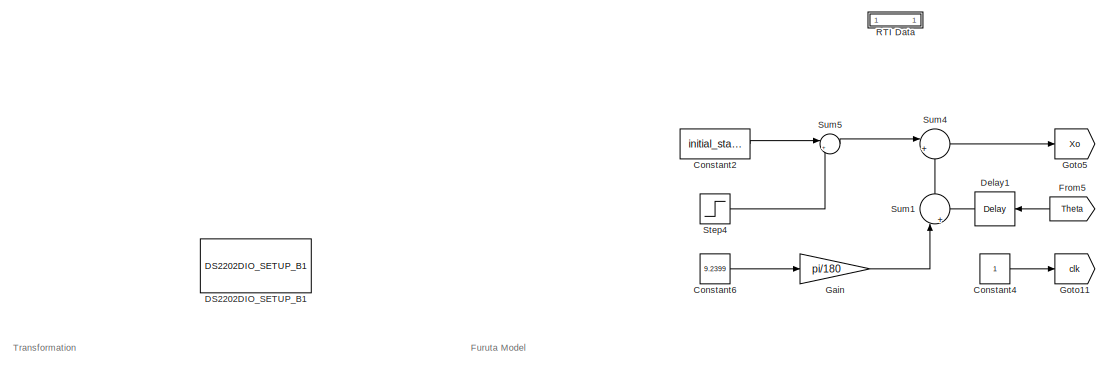
[diagram: root canvas - part 1/3, top left region]
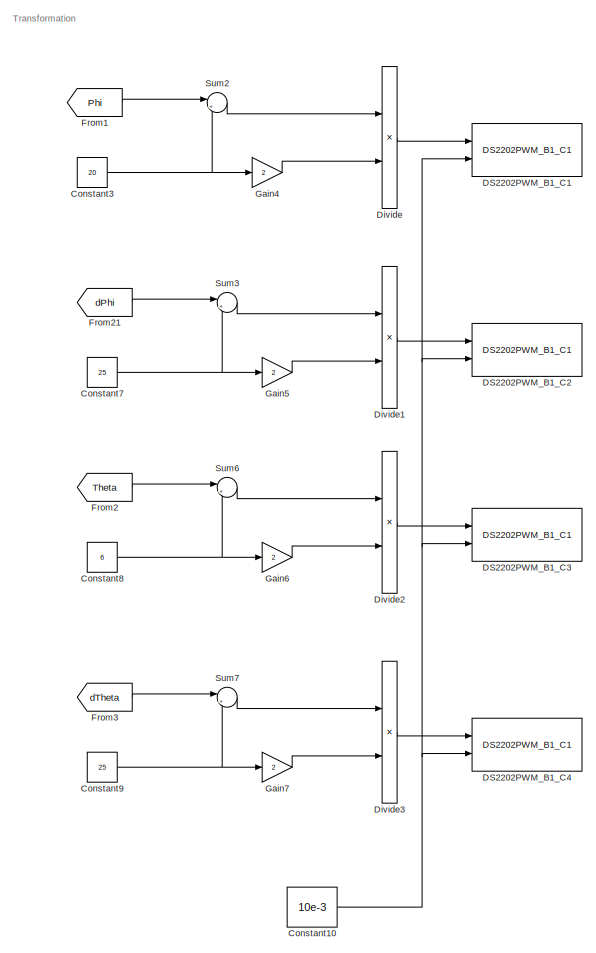
[diagram: root canvas - part 2/3, right side, full height]
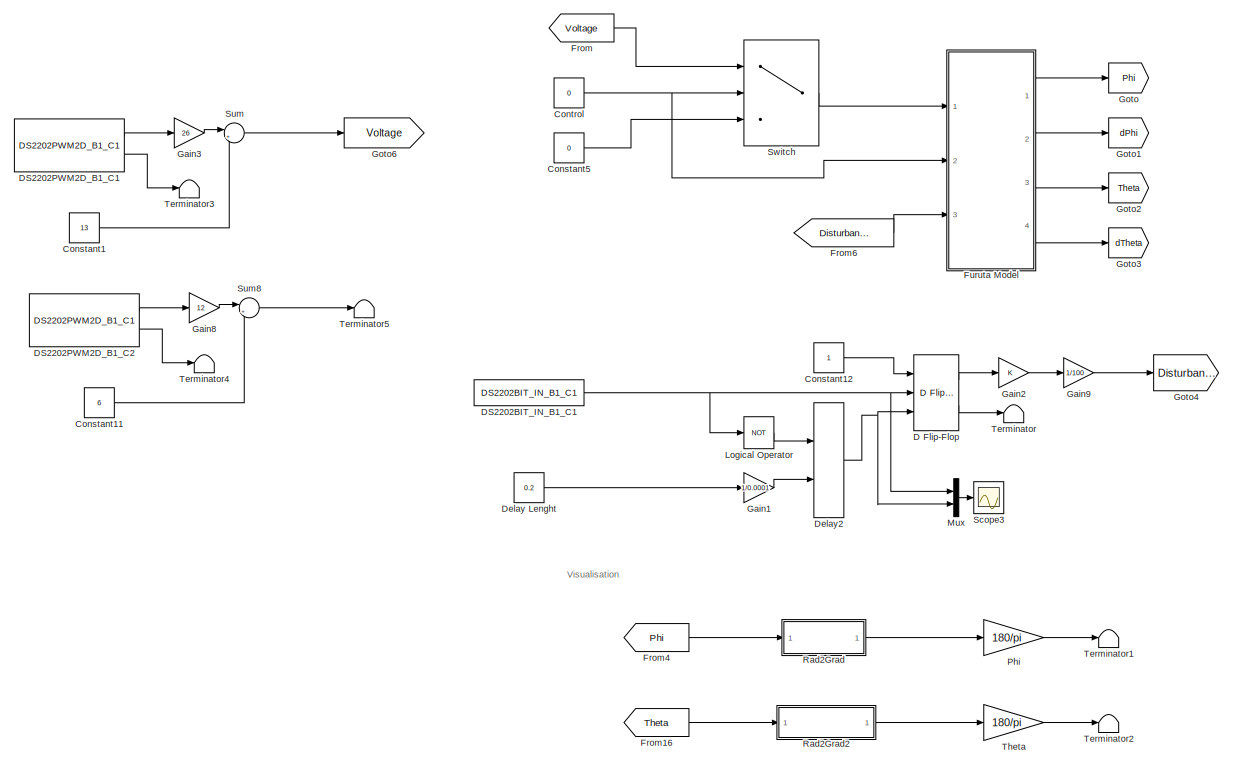
[diagram: root canvas - part 3/3, central region]
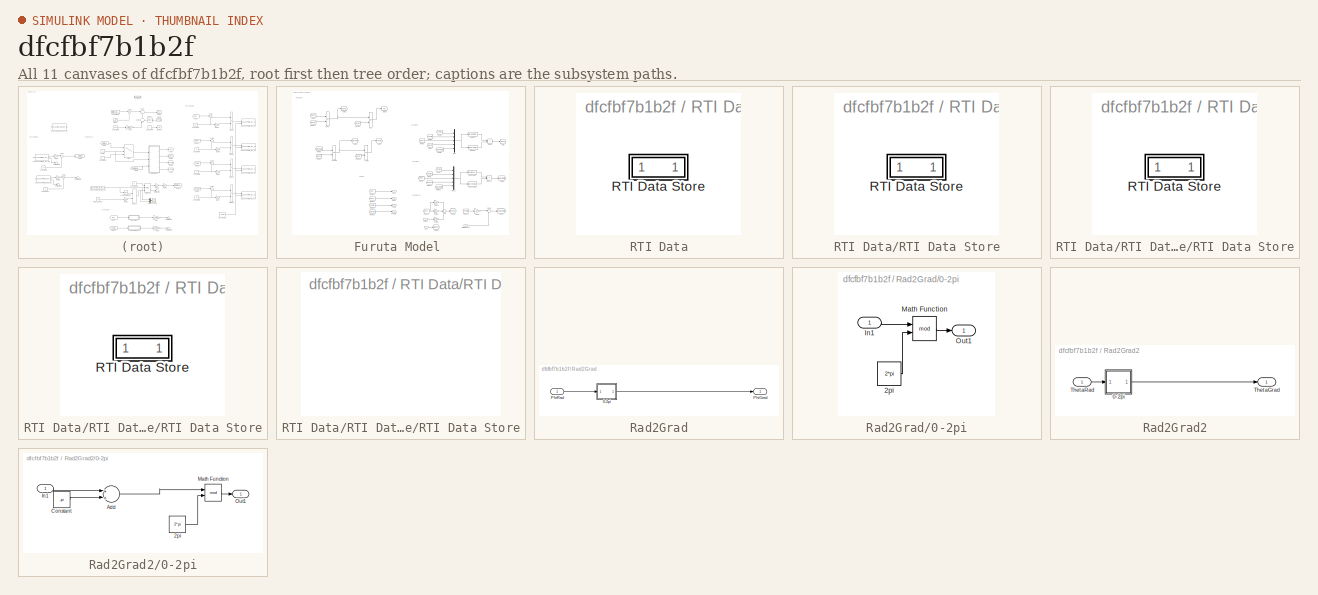
[diagram: thumbnail index - all 11 canvases of the model, root first then tree order]
MODEL slx_dfcfbf7b1b2f
KIND model
CONFIG AbsTol = auto
CONFIG FixedStep = 0.0001
CONFIG MaxStep = auto
CONFIG MinStep = auto
CONFIG PostLoadFcn = , if any(exist('dsrtsu_mdlpostloadfcn', 'file') == [2, 3, 6]), try dsrtsu_mdlpostloadfcn('Execute', bdroot); catch fprintf('Error in PostLoadFcn (dsrtsu_mdlpostloadfcn) for model "%s":\n %s\n', bdroot, lasterr); end, end, \n
CONFIG RelTol = 1e-3
CONFIG SampleTimeConstraint = Unconstrained
CONFIG Solver = ode3
CONFIG SolverMode = SingleTasking
CONFIG SolverName = ode3
CONFIG StartTime = 0.0
CONFIG StopTime = Inf
BLOCK [Constant] Constant1
  Value = 13
BLOCK [Constant] Constant10
  Value = 10e-3
BLOCK [Constant] Constant11
  Value = 6
BLOCK [Constant] Constant12
  OutDataTypeStr = boolean
BLOCK [Constant] Constant2
  Commented = on
  Value = initial_state
BLOCK [Constant] Constant3
  Value = 20
BLOCK [Constant] Constant4
  Commented = on
BLOCK [Constant] Constant5
  Value = 0
BLOCK [Constant] Constant6
  Commented = on
  Value = 9.2399
BLOCK [Constant] Constant7
  Value = 25
BLOCK [Constant] Constant8
  Value = 6
BLOCK [Constant] Constant9
  Value = 25
BLOCK [Constant] Control
  Value = 0
BLOCK [Reference] D Flip-Flop  REF=simulink_extras/Flip Flops/D Flip-Flop
  Ports = [3, 2]
  SourceBlock = simulink_extras/Flip Flops/D Flip-Flop
  SourceType = DFlipFlop
BLOCK [Reference] DS2202BIT_IN_B1_C1  REF=rti2202miolib/DS2202BIT_IN_B1_C1
  DSProperties = struct('RTI',struct('Version',uint32(1),'BlockType',struct('isSLSource',uint8(1),'isSLSink',uint8(0),'isHWSource',uint8(1),'isHWSink',uint8(0),'isSetup',uint8(0),'isInline',uint8(1),'isNonInline',uint8(0),'isInterrupt',uint8(0),'isChannelwise',uint8(1)),'IOBoardType',{{'DS2202','MIO'}},'UnitType','BIT','Identifier','BITINCH','DialogType','ML','BlockSet','NONE','SlaveProcessor','NONE'))
  Ports = [0, 1]
  RTIBlockInterface = struct('OutputPortsWidth',int32(1),'OutputPortsDataType',{{'SS_BOOLEAN'}},'OutputPortsActive',1,'OutputPortsName',{{'BITCH_out'}},'BlockDisplay',{{['BIT IN\n Channelwise'],'center'}},'IconTransparency','off','InitLevel',2,'DialogFcn','gui2202bitinch','BlockName',struct('Token',{{'DS2202BIT_IN_B','_C'}},'BlockParam',{{'BoardNo','ChannelNo'}}),'MaskDescription',['Provides channelwise read access to ...<+21ch>
  RTIBlockParaDefault = struct('BoardNo',1,'ChannelNo',1,'TLCFileName','rti2202inch')
  RTIBlockParameters = struct('BoardNo',{{1,'ON',[1 16]}},'ChannelNo',{{1,'ON',[1 38]}},'TLCFileName',{{'rti2202inch','OFF',[]}})
  RTISFcnParameters = struct('BoardNo','int32','ChannelNo','int32','TLCFileName','char')
  Reserved1 = []
  Reserved2 = []
  Reserved3 = []
  Reserved4 = []
  SourceBlock = rti2202miolib/DS2202BIT_IN_B1_C1
  SourceType = RTI
BLOCK [Reference] DS2202DIO_SETUP_B1  REF=rti2202miolib/DS2202DIO_SETUP_B1
  DSProperties = struct('RTI',struct('Version',uint32(2),'BlockType',struct('isSLSource',uint8(0),'isSLSink',uint8(0),'isHWSource',uint8(0),'isHWSink',uint8(0),'isSetup',uint8(1),'isInline',uint8(1),'isNonInline',uint8(0),'isInterrupt',uint8(0),'isChannelwise',uint8(0)),'IOBoardType',{{'DS2202','MIO'}},'UnitType','SETUP','Identifier','SETUP','DialogType','ML','BlockSet','NONE','SlaveProcessor','NONE'))
  Ports = []
  RTIBlockInterface = struct('OutputPortsWidth',int32(0),'OutputPortsActive',0,'BlockDisplay',{{['Digital I/O\n SETUP'],'center'}},'IconTransparency','on','InitLevel',2,'DialogFcn','gui2202diosetup','BlockName',struct('Token',{{'DS2202DIO_SETUP_B'}},'BlockParam',{{'BoardNo'}}),'MaskDescription',['Configures the threshold level and the termination mode for all digital IO'])
  RTIBlockParaDefault = struct('BoardNo',1,'TermMode',0,'BitInThresholdLevelCh1',2.5,'BitInThresholdLevelCh2',2.5,'BitInThresholdLevelCh3',2.5,'BitInThresholdLevelCh4',2.5,'BitInThresholdLevelCh5',2.5,'BitInThresholdLevelCh6',2.5,'BitInThresholdLevelCh7',2.5,'BitInThresholdLevelCh8',2.5,'BitInThresholdLevelCh9',2.5,'BitInThresholdLevelCh10',2.5,'BitInThresholdLevelCh11',2.5,'BitInThresholdLevelCh12',2.5,'BitInThresholdLe...<+776ch>
  RTIBlockParameters = struct('BoardNo',{{1,'ON',[1 16]}},'TermMode',{{0,'OFF',[0 1]}},'BitInThresholdLevelCh1',{{'2.5','OFF',[1 23.8]}},'BitInThresholdLevelCh2',{{'2.5','OFF',[1 23.8]}},'BitInThresholdLevelCh3',{{'2.5','OFF',[1 23.8]}},'BitInThresholdLevelCh4',{{'2.5','OFF',[1 23.8]}},'BitInThresholdLevelCh5',{{'2.5','OFF',[1 23.8]}},'BitInThresholdLevelCh6',{{'2.5','OFF',[1 23.8]}},'BitInThresholdLevelCh7',{{'2.5','OF...<+1466ch>
  RTISFcnParameters = struct('BoardNo','int32','TermMode','int32','BitInThresholdLevelCh1','double','BitInThresholdLevelCh2','double','BitInThresholdLevelCh3','double','BitInThresholdLevelCh4','double','BitInThresholdLevelCh5','double','BitInThresholdLevelCh6','double','BitInThresholdLevelCh7','double','BitInThresholdLevelCh8','double','BitInThresholdLevelCh9','double','BitInThresholdLevelCh10','double','BitInThreshold...<+754ch>
  Reserved1 = []
  Reserved2 = []
  Reserved3 = []
  Reserved4 = []
  SourceBlock = rti2202miolib/DS2202DIO_SETUP_B1
  SourceType = RTI
BLOCK [Reference] DS2202PWM2D_B1_C1  REF=rti2202miolib/DS2202PWM2D_B1_C1
  DSProperties = struct('RTI',struct('Version',uint32(1),'BlockType',struct('isSLSource',uint8(1),'isSLSink',uint8(0),'isHWSource',uint8(1),'isHWSink',uint8(0),'isSetup',uint8(0),'isInline',uint8(1),'isNonInline',uint8(0),'isInterrupt',uint8(0),'isChannelwise',uint8(1)),'IOBoardType',{{'DS2202','MIO'}},'UnitType','PWM','Identifier','PWM2D','DialogType','ML','BlockSet','NONE','SlaveProcessor','NONE'))
  Ports = [0, 2]
  RTIBlockInterface = struct('OutputPortsWidth',int32([1 1]),'OutputPortsActive',[1 1],'OutputPortsName',{{['Duty Cycle'],'Period'}},'IconTransparency','on','InitLevel',2,'DialogFcn','gui2202pwm2d','BlockName',struct('Token',{{'DS2202PWM2D_B','_C'}},'BlockParam',{{'BoardNo','ChannelNo'}}),'MaskDescription',['Provides read access to the pulse width of square-wave-type signals.'])
  RTIBlockParaDefault = struct('BoardNo',1,'ChannelNo',1,'UpdateMode',1,'PeriodRange',7,'TLCFileName','rti2202pwm2d')
  RTIBlockParameters = struct('BoardNo',{{1,'ON',[1 16]}},'ChannelNo',{{1,'ON',[1 24]}},'UpdateMode',{{1,'ON',[1 2]}},'PeriodRange',{{3,'OFF',[1 16]}},'TLCFileName',{{'rti2202pwm2d','OFF',[]}})
  RTISFcnParameters = struct('BoardNo','int32','ChannelNo','int32','UpdateMode','int32','PeriodRange','int32','TLCFileName','char')
  Reserved1 = []
  Reserved2 = []
  Reserved3 = []
  Reserved4 = []
  SourceBlock = rti2202miolib/DS2202PWM2D_B1_C1
  SourceType = RTI
BLOCK [Reference] DS2202PWM2D_B1_C2  REF=rti2202miolib/DS2202PWM2D_B1_C1
  DSProperties = struct('RTI',struct('Version',uint32(1),'BlockType',struct('isSLSource',uint8(1),'isSLSink',uint8(0),'isHWSource',uint8(1),'isHWSink',uint8(0),'isSetup',uint8(0),'isInline',uint8(1),'isNonInline',uint8(0),'isInterrupt',uint8(0),'isChannelwise',uint8(1)),'IOBoardType',{{'DS2202','MIO'}},'UnitType','PWM','Identifier','PWM2D','DialogType','ML','BlockSet','NONE','SlaveProcessor','NONE'))
  Ports = [0, 2]
  RTIBlockInterface = struct('OutputPortsWidth',int32([1 1]),'OutputPortsActive',[1 1],'OutputPortsName',{{['Duty Cycle'],'Period'}},'IconTransparency','on','InitLevel',2,'DialogFcn','gui2202pwm2d','BlockName',struct('Token',{{'DS2202PWM2D_B','_C'}},'BlockParam',{{'BoardNo','ChannelNo'}}),'MaskDescription',['Provides read access to the pulse width of square-wave-type signals.'])
  RTIBlockParaDefault = struct('BoardNo',1,'ChannelNo',1,'UpdateMode',1,'PeriodRange',7,'TLCFileName','rti2202pwm2d')
  RTIBlockParameters = struct('BoardNo',{{1,'ON',[1 16]}},'ChannelNo',{{2,'ON',[1 24]}},'UpdateMode',{{1,'ON',[1 2]}},'PeriodRange',{{3,'OFF',[1 16]}},'TLCFileName',{{'rti2202pwm2d','OFF',[]}})
  RTISFcnParameters = struct('BoardNo','int32','ChannelNo','int32','UpdateMode','int32','PeriodRange','int32','TLCFileName','char')
  Reserved1 = []
  Reserved2 = []
  Reserved3 = []
  Reserved4 = []
  SourceBlock = rti2202miolib/DS2202PWM2D_B1_C1
  SourceType = RTI
BLOCK [Reference] DS2202PWM_B1_C1  REF=rti2202miolib/DS2202PWM_B1_C1
  DSProperties = struct('RTI',struct('Version',uint32(1),'BlockType',struct('isSLSource',uint8(0),'isSLSink',uint8(1),'isHWSource',uint8(0),'isHWSink',uint8(1),'isSetup',uint8(0),'isInline',uint8(1),'isNonInline',uint8(0),'isInterrupt',uint8(0),'isChannelwise',uint8(1)),'IOBoardType',{{'DS2202','MIO'}},'UnitType','PWM','Identifier','PWM','DialogType','ML','BlockSet','NONE','SlaveProcessor','NONE'))  <repeated x4 — deduplicated; at blocks: DS2202PWM_B1_C1, DS2202PWM_B1_C2, DS2202PWM_B1_C3, DS2202PWM_B1_C4>
  Ports = [2]
  RTIBlockInterface = struct('InputPortsWidth',int32([1 1]),'InputPortsActive',[1 1],'InputPortsName',{{['Duty Cycle'],'Period'}},'IconTransparency','on','InitLevel',2,'DialogFcn','gui2202pwm','BlockName',struct('Token',{{'DS2202PWM_B','_C'}},'BlockParam',{{'BoardNo','ChannelNo'}}),'MaskDescription',['Generation of a square-wave-type signal for a given period and duty cycle.'])  <repeated x4 — deduplicated; at blocks: DS2202PWM_B1_C1, DS2202PWM_B1_C2, DS2202PWM_B1_C3, DS2202PWM_B1_C4>
  RTIBlockParaDefault = struct('BoardNo',1,'ChannelNo',1,'UpdateMode',1,'PeriodRange',7,'DutyCycleInitValue',0,'PeriodInitValue',5e-05,'DutyCyclePeriodTermMode',0,'DutyCycleTermValue',0,'PeriodTermValue',5e-05,'TLCFileName','rti2202pwm')  <repeated x4 — deduplicated; at blocks: DS2202PWM_B1_C1, DS2202PWM_B1_C2, DS2202PWM_B1_C3, DS2202PWM_B1_C4>
  RTIBlockParameters = struct('BoardNo',{{1,'ON',[1 16]}},'ChannelNo',{{1,'ON',[1 9]}},'UpdateMode',{{1,'ON',[1 2]}},'PeriodRange',{{3,'OFF',[1 16]}},'DutyCycleInitValue',{{'0','OFF',[0 1]}},'PeriodInitValue',{{'5e-05','OFF',[]}},'DutyCyclePeriodTermMode',{{0,'OFF',[0 1]}},'DutyCycleTermValue',{{'0','OFF',[0 1]}},'PeriodTermValue',{{'5e-05','OFF',[]}},'TLCFileName',{{'rti2202pwm','OFF',[]}})
  RTISFcnParameters = struct('BoardNo','int32','ChannelNo','int32','UpdateMode','int32','PeriodRange','int32','DutyCycleInitValue','double','PeriodInitValue','double','DutyCyclePeriodTermMode','int32','DutyCycleTermValue','double','PeriodTermValue','double','TLCFileName','char')  <repeated x4 — deduplicated; at blocks: DS2202PWM_B1_C1, DS2202PWM_B1_C2, DS2202PWM_B1_C3, DS2202PWM_B1_C4>
  Reserved1 = []
  Reserved2 = []
  Reserved3 = []
  Reserved4 = []
  SourceBlock = rti2202miolib/DS2202PWM_B1_C1
  SourceType = RTI
BLOCK [Reference] DS2202PWM_B1_C2  REF=rti2202miolib/DS2202PWM_B1_C1
  Ports = [2]
  RTIBlockParameters = struct('BoardNo',{{1,'ON',[1 16]}},'ChannelNo',{{2,'ON',[1 9]}},'UpdateMode',{{1,'ON',[1 2]}},'PeriodRange',{{3,'OFF',[1 16]}},'DutyCycleInitValue',{{'0','OFF',[0 1]}},'PeriodInitValue',{{'5e-05','OFF',[]}},'DutyCyclePeriodTermMode',{{0,'OFF',[0 1]}},'DutyCycleTermValue',{{'0','OFF',[0 1]}},'PeriodTermValue',{{'5e-05','OFF',[]}},'TLCFileName',{{'rti2202pwm','OFF',[]}})
  Reserved1 = []
  Reserved2 = []
  Reserved3 = []
  Reserved4 = []
  SourceBlock = rti2202miolib/DS2202PWM_B1_C1
  SourceType = RTI
BLOCK [Reference] DS2202PWM_B1_C3  REF=rti2202miolib/DS2202PWM_B1_C1
  Ports = [2]
  RTIBlockParameters = struct('BoardNo',{{1,'ON',[1 16]}},'ChannelNo',{{3,'ON',[1 9]}},'UpdateMode',{{1,'ON',[1 2]}},'PeriodRange',{{3,'OFF',[1 16]}},'DutyCycleInitValue',{{'0','OFF',[0 1]}},'PeriodInitValue',{{'5e-05','OFF',[]}},'DutyCyclePeriodTermMode',{{0,'OFF',[0 1]}},'DutyCycleTermValue',{{'0','OFF',[0 1]}},'PeriodTermValue',{{'5e-05','OFF',[]}},'TLCFileName',{{'rti2202pwm','OFF',[]}})
  Reserved1 = []
  Reserved2 = []
  Reserved3 = []
  Reserved4 = []
  SourceBlock = rti2202miolib/DS2202PWM_B1_C1
  SourceType = RTI
BLOCK [Reference] DS2202PWM_B1_C4  REF=rti2202miolib/DS2202PWM_B1_C1
  Ports = [2]
  RTIBlockParameters = struct('BoardNo',{{1,'ON',[1 16]}},'ChannelNo',{{4,'ON',[1 9]}},'UpdateMode',{{1,'ON',[1 2]}},'PeriodRange',{{3,'OFF',[1 16]}},'DutyCycleInitValue',{{'0','OFF',[0 1]}},'PeriodInitValue',{{'5e-05','OFF',[]}},'DutyCyclePeriodTermMode',{{0,'OFF',[0 1]}},'DutyCycleTermValue',{{'0','OFF',[0 1]}},'PeriodTermValue',{{'5e-05','OFF',[]}},'TLCFileName',{{'rti2202pwm','OFF',[]}})
  Reserved1 = []
  Reserved2 = []
  Reserved3 = []
  Reserved4 = []
  SourceBlock = rti2202miolib/DS2202PWM_B1_C1
  SourceType = RTI
BLOCK [Constant] Delay Lenght
  OutDataTypeStr = double
  Value = 0.2
BLOCK [Delay] Delay1
  Commented = on
  DelayLength = 1
  InputPortMap = u0
  Ports = [1, 1]
BLOCK [Delay] Delay2
  DelayLengthSource = Input port
  DelayLengthUpperLimit = 100000
  InitialCondition = 1
  InputPortMap = u0,p1
  Ports = [2, 1]
BLOCK [Product] Divide
  InputSameDT = off
  Inputs = */
  OutDataTypeStr = Inherit: Inherit via internal rule
  Ports = [2, 1]
  RndMeth = Floor
  SaturateOnIntegerOverflow = off
BLOCK [Product] Divide1
  InputSameDT = off
  Inputs = */
  OutDataTypeStr = Inherit: Inherit via internal rule
  Ports = [2, 1]
  RndMeth = Floor
  SaturateOnIntegerOverflow = off
BLOCK [Product] Divide2
  InputSameDT = off
  Inputs = */
  OutDataTypeStr = Inherit: Inherit via internal rule
  Ports = [2, 1]
  RndMeth = Floor
  SaturateOnIntegerOverflow = off
BLOCK [Product] Divide3
  InputSameDT = off
  Inputs = */
  OutDataTypeStr = Inherit: Inherit via internal rule
  Ports = [2, 1]
  RndMeth = Floor
  SaturateOnIntegerOverflow = off
BLOCK [From] From
  GotoTag = Voltage
BLOCK [From] From1
  GotoTag = Phi
BLOCK [From] From16
  GotoTag = Theta
BLOCK [From] From2
  GotoTag = Theta
BLOCK [From] From21
  GotoTag = dPhi
BLOCK [From] From3
  GotoTag = dTheta
BLOCK [From] From4
  GotoTag = Phi
BLOCK [From] From5
  Commented = on
  GotoTag = Theta
BLOCK [From] From6
  GotoTag = Disturbance
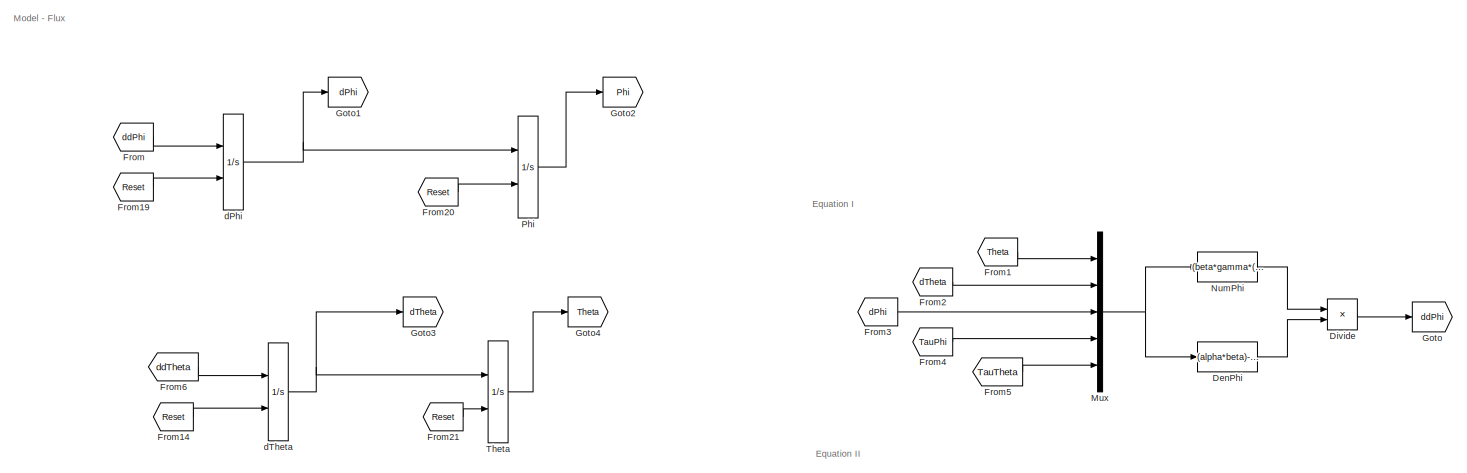
[diagram: Furuta Model  - part 1/2, full width, top band]
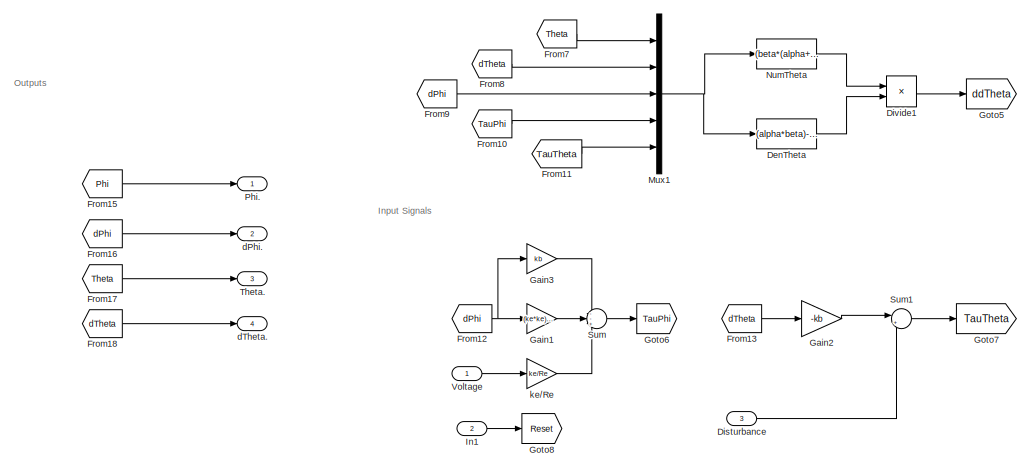
[diagram: Furuta Model  - part 2/2, bottom center region]
BLOCK [SubSystem] Furuta Model 
  Ports = [3, 4]
  RequestExecContextInheritance = off
BLOCK [Fcn] Furuta Model /DenPhi
  Expr = (alpha*beta)-(gamma*gamma)+((beta*beta+gamma*gamma)*sin(u(1))*sin(u(1)))
BLOCK [Fcn] Furuta Model /DenTheta
  Expr = (alpha*beta)-(gamma*gamma)+((beta*beta+gamma*gamma)*sin(u(1))*sin(u(1)))
BLOCK [Inport] Furuta Model /Disturbance
  IconDisplay = Port number
  Port = 3
BLOCK [Product] Furuta Model /Divide
  InputSameDT = off
  Inputs = */
  OutDataTypeStr = Inherit: Inherit via internal rule
  Ports = [2, 1]
  RndMeth = Floor
  SaturateOnIntegerOverflow = off
BLOCK [Product] Furuta Model /Divide1
  InputSameDT = off
  Inputs = */
  OutDataTypeStr = Inherit: Inherit via internal rule
  Ports = [2, 1]
  RndMeth = Floor
  SaturateOnIntegerOverflow = off
BLOCK [From] Furuta Model /From
  GotoTag = ddPhi
BLOCK [From] Furuta Model /From1
  GotoTag = Theta
BLOCK [From] Furuta Model /From10
  GotoTag = TauPhi
BLOCK [From] Furuta Model /From11
  GotoTag = TauTheta
BLOCK [From] Furuta Model /From12
  GotoTag = dPhi
BLOCK [From] Furuta Model /From13
  GotoTag = dTheta
BLOCK [From] Furuta Model /From14
  GotoTag = Reset
BLOCK [From] Furuta Model /From15
  GotoTag = Phi
BLOCK [From] Furuta Model /From16
  GotoTag = dPhi
BLOCK [From] Furuta Model /From17
  GotoTag = Theta
BLOCK [From] Furuta Model /From18
  GotoTag = dTheta
BLOCK [From] Furuta Model /From19
  GotoTag = Reset
BLOCK [From] Furuta Model /From2
  GotoTag = dTheta
BLOCK [From] Furuta Model /From20
  GotoTag = Reset
BLOCK [From] Furuta Model /From21
  GotoTag = Reset
BLOCK [From] Furuta Model /From3
  GotoTag = dPhi
BLOCK [From] Furuta Model /From4
  GotoTag = TauPhi
BLOCK [From] Furuta Model /From5
  GotoTag = TauTheta
BLOCK [From] Furuta Model /From6
  GotoTag = ddTheta
BLOCK [From] Furuta Model /From7
  GotoTag = Theta
BLOCK [From] Furuta Model /From8
  GotoTag = dTheta
BLOCK [From] Furuta Model /From9
  GotoTag = dPhi
BLOCK [Gain] Furuta Model /Gain1
  Gain = (ke*ke)/Re
  OutDataTypeStr = Inherit: Inherit via internal rule
  ParamDataTypeStr = Inherit: Inherit via internal rule
  SaturateOnIntegerOverflow = off
BLOCK [Gain] Furuta Model /Gain2
  Gain = -kb
  OutDataTypeStr = Inherit: Inherit via internal rule
  ParamDataTypeStr = Inherit: Inherit via internal rule
  SaturateOnIntegerOverflow = off
BLOCK [Gain] Furuta Model /Gain3
  Gain = kb
  OutDataTypeStr = Inherit: Inherit via internal rule
  ParamDataTypeStr = Inherit: Inherit via internal rule
  SaturateOnIntegerOverflow = off
BLOCK [Goto] Furuta Model /Goto
  GotoTag = ddPhi
BLOCK [Goto] Furuta Model /Goto1
  GotoTag = dPhi
BLOCK [Goto] Furuta Model /Goto2
  GotoTag = Phi
BLOCK [Goto] Furuta Model /Goto3
  GotoTag = dTheta
BLOCK [Goto] Furuta Model /Goto4
  GotoTag = Theta
BLOCK [Goto] Furuta Model /Goto5
  GotoTag = ddTheta
BLOCK [Goto] Furuta Model /Goto6
  GotoTag = TauPhi
BLOCK [Goto] Furuta Model /Goto7
  GotoTag = TauTheta
BLOCK [Goto] Furuta Model /Goto8
  GotoTag = Reset
BLOCK [Inport] Furuta Model /In1
  IconDisplay = Port number
  Port = 2
BLOCK [Mux] Furuta Model /Mux
  DisplayOption = bar
  Inputs = 5
  Ports = [5, 1]
BLOCK [Mux] Furuta Model /Mux1
  DisplayOption = bar
  Inputs = 5
  Ports = [5, 1]
BLOCK [Fcn] Furuta Model /NumPhi
  Expr = (beta*gamma*(sin(u(1))*sin(u(1))-1)*sin(u(1))*u(3)*u(3))-(2*beta*beta*cos(u(1))*sin(u(1))*u(3)*u(2))+(beta*gamma*sin(u(1))*u(2)*u(2))-(gamma*sigma*cos(u(1))*sin(u(1)))+(beta*u(4))-(gamma*cos(u(1))*u(5))
BLOCK [Fcn] Furuta Model /NumTheta
  Expr = (beta*(alpha+beta*sin(u(1))*sin(u(1)))*cos(u(1))*sin(u(1))*u(3)*u(3))+(2*beta*gamma*(1-sin(u(1))*sin(u(1)))*sin(u(1))*u(3)*u(2))-(gamma*gamma*cos(u(1))*sin(u(1))*u(2)*u(2))+(sigma*(alpha+beta*sin(u(1))*sin(u(1)))*sin(u(1)))-(gamma*cos(u(1))*u(4))+((alpha+beta*sin(u(1))*sin(u(1)))*u(5))
BLOCK [Integrator] Furuta Model /Phi
  ExternalReset = rising
  Ports = [2, 1]
BLOCK [Outport] Furuta Model /Phi.
  IconDisplay = Port number
BLOCK [Sum] Furuta Model /Sum
  IconShape = round
  InputSameDT = off
  Inputs = --+
  OutDataTypeStr = Inherit: Inherit via internal rule
  Ports = [3, 1]
  SaturateOnIntegerOverflow = off
BLOCK [Sum] Furuta Model /Sum1
  IconShape = round
  InputSameDT = off
  Inputs = |++
  OutDataTypeStr = Inherit: Inherit via internal rule
  Ports = [2, 1]
  SaturateOnIntegerOverflow = off
BLOCK [Integrator] Furuta Model /Theta
  ExternalReset = rising
  InitialCondition = initial_state
  Ports = [2, 1]
BLOCK [Outport] Furuta Model /Theta.
  IconDisplay = Port number
  Port = 3
BLOCK [Inport] Furuta Model /Voltage 
  IconDisplay = Port number
BLOCK [Integrator] Furuta Model /dPhi
  ExternalReset = rising
  Ports = [2, 1]
BLOCK [Outport] Furuta Model /dPhi.
  IconDisplay = Port number
  Port = 2
BLOCK [Integrator] Furuta Model /dTheta
  ExternalReset = rising
  Ports = [2, 1]
BLOCK [Outport] Furuta Model /dTheta.
  IconDisplay = Port number
  Port = 4
BLOCK [Gain] Furuta Model /ke//Re 
  Gain = ke/Re
  OutDataTypeStr = Inherit: Inherit via internal rule
  ParamDataTypeStr = Inherit: Inherit via internal rule
  SaturateOnIntegerOverflow = off
BLOCK [Gain] Gain
  Commented = on
  Gain = pi/180
  OutDataTypeStr = Inherit: Inherit via internal rule
  ParamDataTypeStr = Inherit: Inherit via internal rule
  SaturateOnIntegerOverflow = off
BLOCK [Gain] Gain1
  Gain = 1/0.0001
  OutDataTypeStr = Inherit: Inherit via internal rule
  ParamDataTypeStr = Inherit: Inherit via internal rule
  SaturateOnIntegerOverflow = off
BLOCK [Gain] Gain2
  OutDataTypeStr = Inherit: Inherit via internal rule
  ParamDataTypeStr = double
  SaturateOnIntegerOverflow = off
BLOCK [Gain] Gain3
  Gain = 26
  OutDataTypeStr = Inherit: Inherit via internal rule
  ParamDataTypeStr = Inherit: Inherit via internal rule
  SaturateOnIntegerOverflow = off
BLOCK [Gain] Gain4
  Gain = 2
  OutDataTypeStr = Inherit: Inherit via internal rule
  ParamDataTypeStr = Inherit: Inherit via internal rule
  SaturateOnIntegerOverflow = off
BLOCK [Gain] Gain5
  Gain = 2
  OutDataTypeStr = Inherit: Inherit via internal rule
  ParamDataTypeStr = Inherit: Inherit via internal rule
  SaturateOnIntegerOverflow = off
BLOCK [Gain] Gain6
  Gain = 2
  OutDataTypeStr = Inherit: Inherit via internal rule
  ParamDataTypeStr = Inherit: Inherit via internal rule
  SaturateOnIntegerOverflow = off
BLOCK [Gain] Gain7
  Gain = 2
  OutDataTypeStr = Inherit: Inherit via internal rule
  ParamDataTypeStr = Inherit: Inherit via internal rule
  SaturateOnIntegerOverflow = off
BLOCK [Gain] Gain8
  Gain = 12
  OutDataTypeStr = Inherit: Inherit via internal rule
  ParamDataTypeStr = Inherit: Inherit via internal rule
  SaturateOnIntegerOverflow = off
BLOCK [Gain] Gain9
  Gain = 1/100
  OutDataTypeStr = Inherit: Inherit via internal rule
  ParamDataTypeStr = Inherit: Inherit via internal rule
  SaturateOnIntegerOverflow = off
BLOCK [Goto] Goto
  GotoTag = Phi
BLOCK [Goto] Goto1
  GotoTag = dPhi
BLOCK [Goto] Goto11
  Commented = on
  GotoTag = clk
BLOCK [Goto] Goto2
  GotoTag = Theta
BLOCK [Goto] Goto3
  GotoTag = dTheta
BLOCK [Goto] Goto4
  GotoTag = Disturbance
BLOCK [Goto] Goto5
  Commented = on
  GotoTag = Xo
BLOCK [Goto] Goto6
  GotoTag = Voltage
BLOCK [Logic] Logical Operator
  AllPortsSameDT = off
  Operator = NOT
  OutDataTypeStr = boolean
  Ports = [1, 1]
BLOCK [Mux] Mux
  DisplayOption = bar
  Inputs = 2
  Ports = [2, 1]
BLOCK [Gain] Phi
  Gain = 180/pi
  OutDataTypeStr = Inherit: Inherit via internal rule
  ParamDataTypeStr = Inherit: Inherit via internal rule
  SaturateOnIntegerOverflow = off
BLOCK [SubSystem] RTI Data
  CopyFcn = if exist('rtidc'), try,  rtidc('DataHostBlockClbCopy', gcbh); catch, disp(['Warning: ''CopyFcn'' for RTI Data block failed: ' lasterr]); end, end,
  DeleteFcn = if exist('rtidc'), try,  rtidc('DataHostBlockClbDelete', gcbh); catch, disp(['Warning: ''DeleteFcn'' for RTI Data block failed: ' lasterr]); end, end,
  LoadFcn = if exist('rtidc'), try,  rtidc('DataHostBlockClbLoad', gcbh); catch, disp(['Warning: ''LoadFcn'' for RTI Data block failed: ' lasterr]); end, end,
  ModelCloseFcn = if exist('rtidc'), try,  rtidc('DataHostBlockClbModelClose', gcbh); catch, disp(['Warning: ''ModelCloseFcn'' for RTI Data block failed: ' lasterr]); end, end,
  NameChangeFcn = if exist('rtidc'), try,  rtidc('DataHostBlockClbNameChange', gcbh); catch, disp(['Warning: ''NameChangeFcn'' for RTI Data block failed: ' lasterr]); end, end,
  Ports = []
  PostSaveFcn = if exist('rtidc'), try,  rtidc('DataHostBlockClbPostSave', gcbh); catch, disp(['Warning: ''PostSaveFcn'' for RTI Data block failed: ' lasterr]); end, end,
  PreSaveFcn = if exist('rtidc'), try,  rtidc('DataHostBlockClbPreSave', gcbh); catch, disp(['Warning: ''PreSaveFcn'' for RTI Data block failed: ' lasterr]); end, end,
  RequestExecContextInheritance = off
  Tag = struct('RTIDataServer',struct('RTIDataServerVs','2','RTIModelDescription','struct(''main'',''Furuta_Model'',''sub'','''',''isMp'',0)'))
BLOCK [SubSystem] RTI Data/RTI Data Store
  Ports = []
  RequestExecContextInheritance = off
  Tag = struct('private',struct('version',struct('dsVer',uint32(2),'dsVerCreation',uint32(2),'RTI',struct('ver','7.3','type','RTI1006')),'access',struct('type','Model','isPerm',1,'created',['02-Oct-2018 16:40:55'],'modified',['06-Nov-2018 13:55:35'],'location','')),'public',struct('main',struct('data',[]),'sub',struct('name',{{'Furuta_Model'}},'data',{{struct('TH',struct('thTaskInfo',struct('taskType',{'T...<+893ch>
BLOCK [SubSystem] RTI Data/RTI Data Store/RTI Data Store
  Ports = []
  RequestExecContextInheritance = off
BLOCK [SubSystem] RTI Data/RTI Data Store/RTI Data Store/RTI Data Store
  Ports = []
  RequestExecContextInheritance = off
BLOCK [SubSystem] RTI Data/RTI Data Store/RTI Data Store/RTI Data Store/RTI Data Store
  Ports = []
  RequestExecContextInheritance = off
BLOCK [SubSystem] Rad2Grad
  Ports = [1, 1]
  RequestExecContextInheritance = off
BLOCK [SubSystem] Rad2Grad/0-2pi
  Ports = [1, 1]
  RequestExecContextInheritance = off
BLOCK [Constant] Rad2Grad/0-2pi/2pi
  Value = 2*pi
BLOCK [Inport] Rad2Grad/0-2pi/In1
  IconDisplay = Port number
BLOCK [Math] Rad2Grad/0-2pi/Math Function
  Operator = mod
  Ports = [2, 1]
BLOCK [Outport] Rad2Grad/0-2pi/Out1
  IconDisplay = Port number
BLOCK [Outport] Rad2Grad/PhiGrad
  IconDisplay = Port number
BLOCK [Inport] Rad2Grad/PhiRad
  IconDisplay = Port number
BLOCK [SubSystem] Rad2Grad2
  Ports = [1, 1]
  RequestExecContextInheritance = off
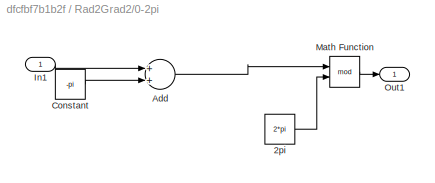
BLOCK [SubSystem] Rad2Grad2/0-2pi
  Ports = [1, 1]
  RequestExecContextInheritance = off
BLOCK [Constant] Rad2Grad2/0-2pi/2pi
  Value = 2*pi
BLOCK [Sum] Rad2Grad2/0-2pi/Add
  InputSameDT = off
  OutDataTypeStr = Inherit: Inherit via internal rule
  Ports = [2, 1]
  SaturateOnIntegerOverflow = off
BLOCK [Constant] Rad2Grad2/0-2pi/Constant
  Value = -pi
BLOCK [Inport] Rad2Grad2/0-2pi/In1
  IconDisplay = Port number
BLOCK [Math] Rad2Grad2/0-2pi/Math Function
  Operator = mod
  Ports = [2, 1]
BLOCK [Outport] Rad2Grad2/0-2pi/Out1
  IconDisplay = Port number
BLOCK [Outport] Rad2Grad2/ThetaGrad
  IconDisplay = Port number
BLOCK [Inport] Rad2Grad2/ThetaRad
  IconDisplay = Port number
BLOCK [Scope] Scope3
  Floating = off
  LimitDataPoints = off
  NumInputPorts = 1
  Ports = [1]
  SaveName = ScopeData3
  TimeRange = 10
  ZoomMode = xonly
BLOCK [Step] Step4
  After = initial_state
  Commented = on
  SampleTime = 0
  Time = 0.5
BLOCK [Sum] Sum
  IconShape = round
  InputSameDT = off
  Inputs = |+-
  OutDataTypeStr = Inherit: Inherit via internal rule
  Ports = [2, 1]
  SaturateOnIntegerOverflow = off
BLOCK [Sum] Sum1
  Commented = on
  IconShape = round
  InputSameDT = off
  Inputs = |++
  OutDataTypeStr = Inherit: Inherit via internal rule
  Ports = [2, 1]
  SaturateOnIntegerOverflow = off
BLOCK [Sum] Sum2
  IconShape = round
  InputSameDT = off
  Inputs = |++
  OutDataTypeStr = Inherit: Inherit via internal rule
  Ports = [2, 1]
  SaturateOnIntegerOverflow = off
BLOCK [Sum] Sum3
  IconShape = round
  InputSameDT = off
  Inputs = |++
  OutDataTypeStr = Inherit: Inherit via internal rule
  Ports = [2, 1]
  SaturateOnIntegerOverflow = off
BLOCK [Sum] Sum4
  Commented = on
  IconShape = round
  InputSameDT = off
  Inputs = |++
  OutDataTypeStr = Inherit: Inherit via internal rule
  Ports = [2, 1]
  SaturateOnIntegerOverflow = off
BLOCK [Sum] Sum5
  Commented = on
  IconShape = round
  InputSameDT = off
  Inputs = |+-
  OutDataTypeStr = Inherit: Inherit via internal rule
  Ports = [2, 1]
  SaturateOnIntegerOverflow = off
BLOCK [Sum] Sum6
  IconShape = round
  InputSameDT = off
  Inputs = |++
  OutDataTypeStr = Inherit: Inherit via internal rule
  Ports = [2, 1]
  SaturateOnIntegerOverflow = off
BLOCK [Sum] Sum7
  IconShape = round
  InputSameDT = off
  Inputs = |++
  OutDataTypeStr = Inherit: Inherit via internal rule
  Ports = [2, 1]
  SaturateOnIntegerOverflow = off
BLOCK [Sum] Sum8
  IconShape = round
  InputSameDT = off
  Inputs = |+-
  OutDataTypeStr = Inherit: Inherit via internal rule
  Ports = [2, 1]
  SaturateOnIntegerOverflow = off
BLOCK [Switch] Switch
  Criteria = u2 > Threshold
  InputSameDT = off
  SaturateOnIntegerOverflow = off
  Threshold = 0.5
BLOCK [Terminator] Terminator
BLOCK [Terminator] Terminator1
BLOCK [Terminator] Terminator2
BLOCK [Terminator] Terminator3
BLOCK [Terminator] Terminator4
BLOCK [Terminator] Terminator5
BLOCK [Gain] Theta
  Gain = 180/pi
  OutDataTypeStr = Inherit: Inherit via internal rule
  ParamDataTypeStr = Inherit: Inherit via internal rule
  SaturateOnIntegerOverflow = off
ANNOTATION (root): Furuta Model
ANNOTATION (root): Transformation
ANNOTATION (root): Visualisation
ANNOTATION Furuta Model : Equation I
ANNOTATION Furuta Model : Equation II
ANNOTATION Furuta Model : Input Signals
ANNOTATION Furuta Model : Model - Flux
ANNOTATION Furuta Model : Outputs
NET Constant10:1 -> DS2202PWM_B1_C1:2, DS2202PWM_B1_C2:2, DS2202PWM_B1_C3:2, DS2202PWM_B1_C4:2
LINE Constant11:1 -> Sum8:2
LINE Constant12:1 -> D Flip-Flop:1
LINE Constant1:1 -> Sum:2
LINE Constant2:1 -> Sum5:1
NET Constant3:1 -> Gain4:1, Sum2:2
LINE Constant4:1 -> Goto11:1
LINE Constant5:1 -> Switch:3
LINE Constant6:1 -> Gain:1
NET Constant7:1 -> Gain5:1, Sum3:2
NET Constant8:1 -> Gain6:1, Sum6:2
NET Constant9:1 -> Gain7:1, Sum7:2
NET Control:1 -> Furuta Model :2, Switch:2
LINE D Flip-Flop:1 -> Gain2:1
LINE D Flip-Flop:2 -> Terminator:1
NET DS2202BIT_IN_B1_C1:1 -> D Flip-Flop:2, Logical Operator:1, Mux:1
LINE DS2202PWM2D_B1_C1:1 -> Gain3:1
LINE DS2202PWM2D_B1_C1:2 -> Terminator3:1
LINE DS2202PWM2D_B1_C2:1 -> Gain8:1
LINE DS2202PWM2D_B1_C2:2 -> Terminator4:1
LINE Delay Lenght:1 -> Gain1:1
LINE Delay1:1 -> Sum1:2
NET Delay2:1 -> D Flip-Flop:3, Mux:2
LINE Divide1:1 -> DS2202PWM_B1_C2:1
LINE Divide2:1 -> DS2202PWM_B1_C3:1
LINE Divide3:1 -> DS2202PWM_B1_C4:1
LINE Divide:1 -> DS2202PWM_B1_C1:1
LINE From16:1 -> Rad2Grad2:1
LINE From1:1 -> Sum2:1
LINE From21:1 -> Sum3:1
LINE From2:1 -> Sum6:1
LINE From3:1 -> Sum7:1
LINE From4:1 -> Rad2Grad:1
LINE From5:1 -> Delay1:1
LINE From6:1 -> Furuta Model :3
LINE From:1 -> Switch:1
LINE Furuta Model /DenPhi:1 -> Furuta Model /Divide:2
LINE Furuta Model /DenTheta:1 -> Furuta Model /Divide1:2
LINE Furuta Model /Disturbance:1 -> Furuta Model /Sum1:2
LINE Furuta Model /Divide1:1 -> Furuta Model /Goto5:1
LINE Furuta Model /Divide:1 -> Furuta Model /Goto:1
LINE Furuta Model /From10:1 -> Furuta Model /Mux1:4
LINE Furuta Model /From11:1 -> Furuta Model /Mux1:5
NET Furuta Model /From12:1 -> Furuta Model /Gain1:1, Furuta Model /Gain3:1
LINE Furuta Model /From13:1 -> Furuta Model /Gain2:1
LINE Furuta Model /From14:1 -> Furuta Model /dTheta:2
LINE Furuta Model /From15:1 -> Furuta Model /Phi.:1
LINE Furuta Model /From16:1 -> Furuta Model /dPhi.:1
LINE Furuta Model /From17:1 -> Furuta Model /Theta.:1
LINE Furuta Model /From18:1 -> Furuta Model /dTheta.:1
LINE Furuta Model /From19:1 -> Furuta Model /dPhi:2
LINE Furuta Model /From1:1 -> Furuta Model /Mux:1
LINE Furuta Model /From20:1 -> Furuta Model /Phi:2
LINE Furuta Model /From21:1 -> Furuta Model /Theta:2
LINE Furuta Model /From2:1 -> Furuta Model /Mux:2
LINE Furuta Model /From3:1 -> Furuta Model /Mux:3
LINE Furuta Model /From4:1 -> Furuta Model /Mux:4
LINE Furuta Model /From5:1 -> Furuta Model /Mux:5
LINE Furuta Model /From6:1 -> Furuta Model /dTheta:1
LINE Furuta Model /From7:1 -> Furuta Model /Mux1:1
LINE Furuta Model /From8:1 -> Furuta Model /Mux1:2
LINE Furuta Model /From9:1 -> Furuta Model /Mux1:3
LINE Furuta Model /From:1 -> Furuta Model /dPhi:1
LINE Furuta Model /Gain1:1 -> Furuta Model /Sum:2
LINE Furuta Model /Gain2:1 -> Furuta Model /Sum1:1
LINE Furuta Model /Gain3:1 -> Furuta Model /Sum:1
LINE Furuta Model /In1:1 -> Furuta Model /Goto8:1
NET Furuta Model /Mux1:1 -> Furuta Model /DenTheta:1, Furuta Model /NumTheta:1
NET Furuta Model /Mux:1 -> Furuta Model /DenPhi:1, Furuta Model /NumPhi:1
LINE Furuta Model /NumPhi:1 -> Furuta Model /Divide:1
LINE Furuta Model /NumTheta:1 -> Furuta Model /Divide1:1
LINE Furuta Model /Phi:1 -> Furuta Model /Goto2:1
LINE Furuta Model /Sum1:1 -> Furuta Model /Goto7:1
LINE Furuta Model /Sum:1 -> Furuta Model /Goto6:1
LINE Furuta Model /Theta:1 -> Furuta Model /Goto4:1
LINE Furuta Model /Voltage :1 -> Furuta Model /ke//Re :1
NET Furuta Model /dPhi:1 -> Furuta Model /Goto1:1, Furuta Model /Phi:1
NET Furuta Model /dTheta:1 -> Furuta Model /Goto3:1, Furuta Model /Theta:1
LINE Furuta Model /ke//Re :1 -> Furuta Model /Sum:3
LINE Furuta Model :1 -> Goto:1
LINE Furuta Model :2 -> Goto1:1
LINE Furuta Model :3 -> Goto2:1
LINE Furuta Model :4 -> Goto3:1
LINE Gain1:1 -> Delay2:2
LINE Gain2:1 -> Gain9:1
LINE Gain3:1 -> Sum:1
LINE Gain4:1 -> Divide:2
LINE Gain5:1 -> Divide1:2
LINE Gain6:1 -> Divide2:2
LINE Gain7:1 -> Divide3:2
LINE Gain8:1 -> Sum8:1
LINE Gain9:1 -> Goto4:1
LINE Gain:1 -> Sum1:1
LINE Logical Operator:1 -> Delay2:1
LINE Mux:1 -> Scope3:1
LINE Phi:1 -> Terminator1:1
LINE Rad2Grad/0-2pi/2pi:1 -> Rad2Grad/0-2pi/Math Function:2
LINE Rad2Grad/0-2pi/In1:1 -> Rad2Grad/0-2pi/Math Function:1
LINE Rad2Grad/0-2pi/Math Function:1 -> Rad2Grad/0-2pi/Out1:1
LINE Rad2Grad/0-2pi:1 -> Rad2Grad/PhiGrad:1
LINE Rad2Grad/PhiRad:1 -> Rad2Grad/0-2pi:1
LINE Rad2Grad2/0-2pi/2pi:1 -> Rad2Grad2/0-2pi/Math Function:2
LINE Rad2Grad2/0-2pi/Add:1 -> Rad2Grad2/0-2pi/Math Function:1
LINE Rad2Grad2/0-2pi/Constant:1 -> Rad2Grad2/0-2pi/Add:2
LINE Rad2Grad2/0-2pi/In1:1 -> Rad2Grad2/0-2pi/Add:1
LINE Rad2Grad2/0-2pi/Math Function:1 -> Rad2Grad2/0-2pi/Out1:1
LINE Rad2Grad2/0-2pi:1 -> Rad2Grad2/ThetaGrad:1
LINE Rad2Grad2/ThetaRad:1 -> Rad2Grad2/0-2pi:1
LINE Rad2Grad2:1 -> Theta:1
LINE Rad2Grad:1 -> Phi:1
LINE Step4:1 -> Sum5:2
LINE Sum1:1 -> Sum4:2
LINE Sum2:1 -> Divide:1
LINE Sum3:1 -> Divide1:1
LINE Sum4:1 -> Goto5:1
LINE Sum5:1 -> Sum4:1
LINE Sum6:1 -> Divide2:1
LINE Sum7:1 -> Divide3:1
LINE Sum8:1 -> Terminator5:1
LINE Sum:1 -> Goto6:1
LINE Switch:1 -> Furuta Model :1
LINE Theta:1 -> Terminator2:1
note: NET lines group one-source signal fan-out (src -> all destinations, sorted); 1:1 wires keep LINE
